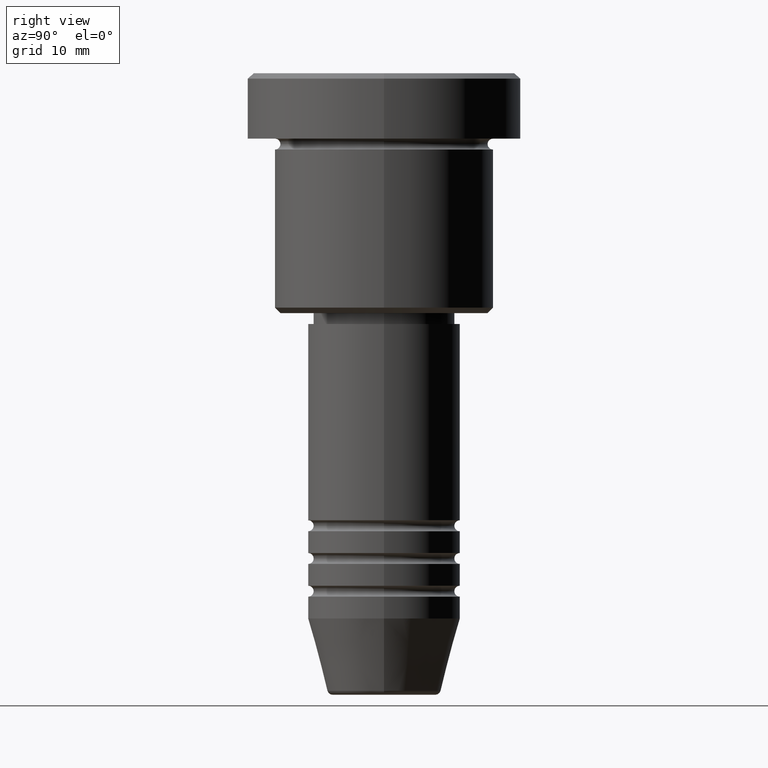
[diagram: clean part render]
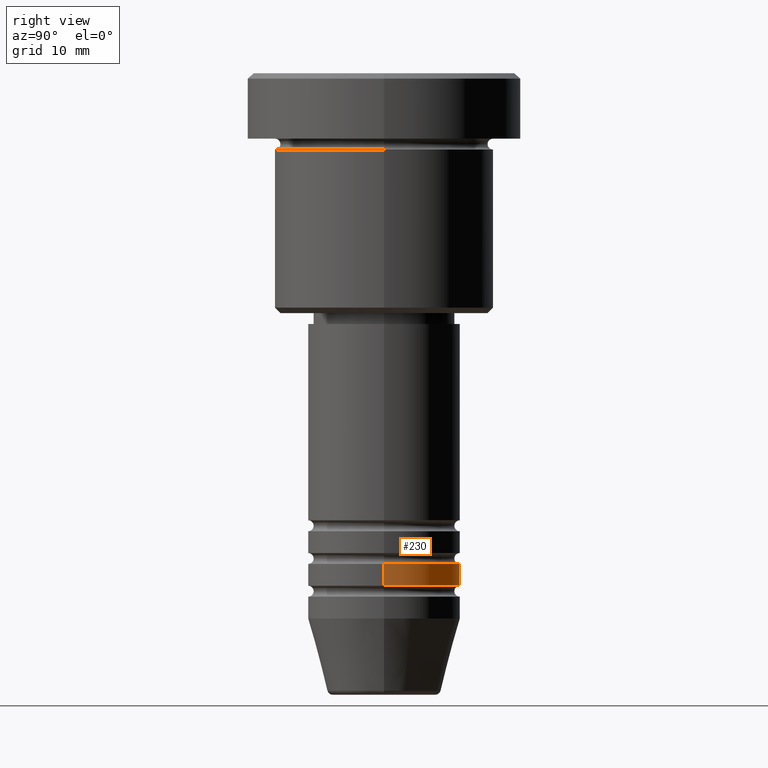
[diagram: same view with one face highlighted and labeled with its STEP entity id]
A machine part, right view. The second image highlights one B-rep face of the part: STEP entity #230.
In plain terms, the highlighted cylindrical surface (partial cylindrical patch) has radius 7 mm, axis along (-0, -0, 1).
Its self-contained STEP definition (entity closure, byte-faithful):
#40 = AXIS2_PLACEMENT_3D ( 'NONE', #688, #609, #150 ) ;
#101 = AXIS2_PLACEMENT_3D ( 'NONE', #1149, #604, #930 ) ;
#135 = CARTESIAN_POINT ( 'NONE',  ( -7.000000000000000000, 8.572527594031473190E-16, 0.000000000000000000 ) ) ;
#138 = CIRCLE ( 'NONE', #193, 7.000000000000000000 ) ;
#150 = DIRECTION ( 'NONE',  ( 1.000000000000000000, 0.000000000000000000, 0.000000000000000000 ) ) ;
#186 = ORIENTED_EDGE ( 'NONE', *, *, #557, .F. ) ;
#187 = VERTEX_POINT ( 'NONE', #631 ) ;
#192 = VECTOR ( 'NONE', #826, 1000.000000000000000 ) ;
#193 = AXIS2_PLACEMENT_3D ( 'NONE', #800, #1166, #352 ) ;
#219 = CARTESIAN_POINT ( 'NONE',  ( -7.000000000000000000, 8.572527594031473190E-16, -46.99999999999998579 ) ) ;
#226 = ORIENTED_EDGE ( 'NONE', *, *, #262, .T. ) ;
#230 = ADVANCED_FACE ( 'NONE', ( #778 ), #983, .T. ) ;
#262 = EDGE_CURVE ( 'NONE', #187, #828, #138, .T. ) ;
#281 = CARTESIAN_POINT ( 'NONE',  ( 7.000000000000000000, 0.000000000000000000, 0.000000000000000000 ) ) ;
#324 = ORIENTED_EDGE ( 'NONE', *, *, #1104, .T. ) ;
#352 = DIRECTION ( 'NONE',  ( 1.000000000000000000, 0.000000000000000000, 0.000000000000000000 ) ) ;
#491 = DIRECTION ( 'NONE',  ( -0.000000000000000000, -0.000000000000000000, 1.000000000000000000 ) ) ;
#557 = EDGE_CURVE ( 'NONE', #187, #809, #1115, .T. ) ;
#582 = CARTESIAN_POINT ( 'NONE',  ( 7.000000000000000000, 0.000000000000000000, -44.99999999999998579 ) ) ;
#584 = LINE ( 'NONE', #135, #1129 ) ;
#604 = DIRECTION ( 'NONE',  ( -0.000000000000000000, -0.000000000000000000, 1.000000000000000000 ) ) ;
#609 = DIRECTION ( 'NONE',  ( -0.000000000000000000, -0.000000000000000000, 1.000000000000000000 ) ) ;
#631 = CARTESIAN_POINT ( 'NONE',  ( 7.000000000000000000, 0.000000000000000000, -46.99999999999998579 ) ) ;
#677 = CARTESIAN_POINT ( 'NONE',  ( -7.000000000000000000, 8.572527594031473190E-16, -44.99999999999998579 ) ) ;
#688 = CARTESIAN_POINT ( 'NONE',  ( 0.000000000000000000, 0.000000000000000000, 0.000000000000000000 ) ) ;
#743 = EDGE_CURVE ( 'NONE', #809, #787, #834, .T. ) ;
#773 = ORIENTED_EDGE ( 'NONE', *, *, #743, .F. ) ;
#778 = FACE_OUTER_BOUND ( 'NONE', #1096, .T. ) ;
#787 = VERTEX_POINT ( 'NONE', #677 ) ;
#800 = CARTESIAN_POINT ( 'NONE',  ( 0.000000000000000000, 0.000000000000000000, -46.99999999999998579 ) ) ;
#809 = VERTEX_POINT ( 'NONE', #582 ) ;
#826 = DIRECTION ( 'NONE',  ( -0.000000000000000000, -0.000000000000000000, 1.000000000000000000 ) ) ;
#828 = VERTEX_POINT ( 'NONE', #219 ) ;
#834 = CIRCLE ( 'NONE', #101, 7.000000000000000000 ) ;
#930 = DIRECTION ( 'NONE',  ( 1.000000000000000000, 0.000000000000000000, 0.000000000000000000 ) ) ;
#983 = CYLINDRICAL_SURFACE ( 'NONE', #40, 7.000000000000000000 ) ;
#1096 = EDGE_LOOP ( 'NONE', ( #226, #324, #773, #186 ) ) ;
#1104 = EDGE_CURVE ( 'NONE', #828, #787, #584, .T. ) ;
#1115 = LINE ( 'NONE', #281, #192 ) ;
#1129 = VECTOR ( 'NONE', #491, 1000.000000000000000 ) ;
#1149 = CARTESIAN_POINT ( 'NONE',  ( 0.000000000000000000, 0.000000000000000000, -44.99999999999998579 ) ) ;
#1166 = DIRECTION ( 'NONE',  ( -0.000000000000000000, -0.000000000000000000, 1.000000000000000000 ) ) ;